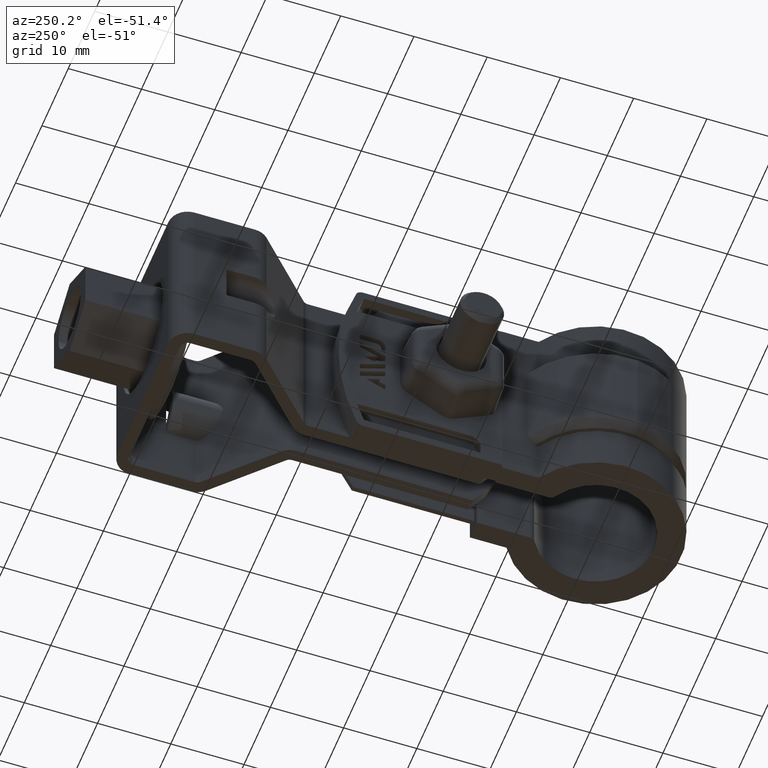
[diagram: clean part render]
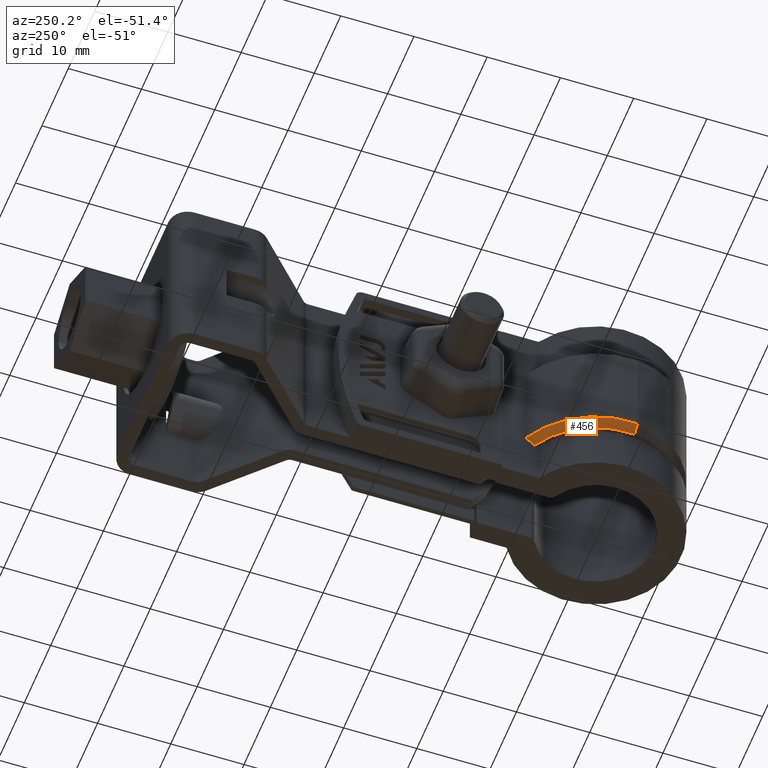
[diagram: same view with one face highlighted and labeled with its STEP entity id]
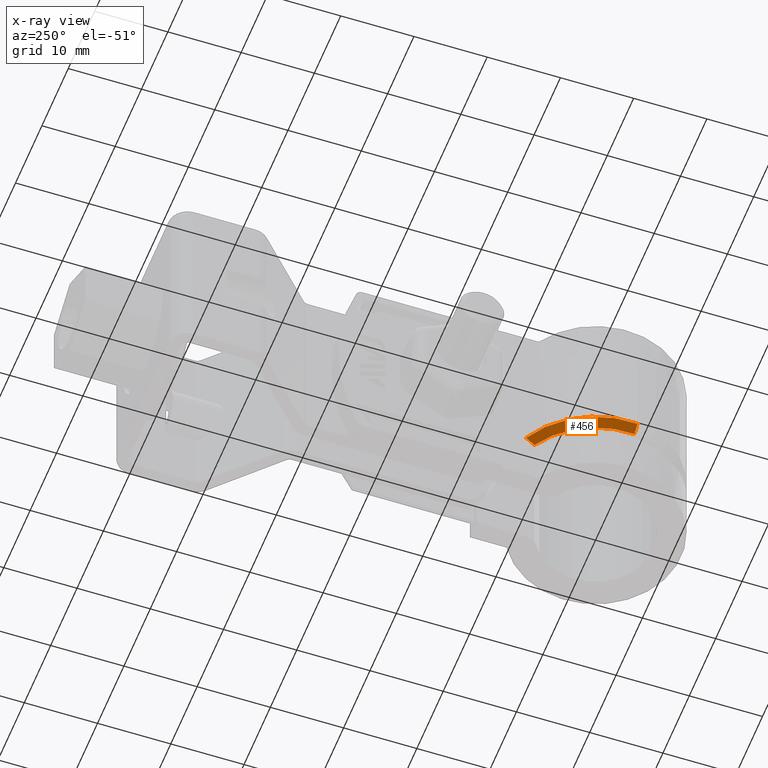
[diagram: x-ray of the same camera — body ghosted, the highlighted face saturated]
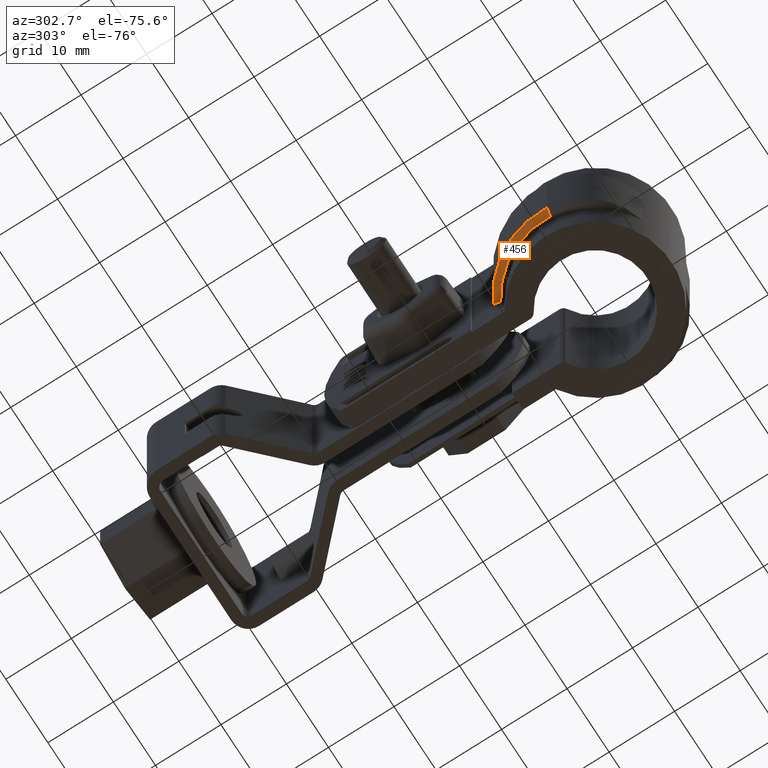
[diagram: same view with one face highlighted and labeled with its STEP entity id]
A machine part, auxiliary view. The second image highlights one B-rep face of the part: STEP entity #456.
The next image is the same camera in x-ray: the body ghosted, the highlighted face saturated — about 0% of this face is hidden behind the body in this view.
A second angle (auxiliary view) of the same face is appended — the face is thin or edge-on in the first view.
In plain terms, the highlighted conical surface has half-angle 45 deg.
Its self-contained STEP definition (entity closure, byte-faithful):
#456 = ADVANCED_FACE( '', ( #886 ), #887, .T. );
#886 = FACE_OUTER_BOUND( '', #2167, .T. );
#887 = CONICAL_SURFACE( '', #2168, 13.1850000000000, 0.785398163397447 );
#2167 = EDGE_LOOP( '', ( #4396, #4397, #4398, #4399 ) );
#2168 = AXIS2_PLACEMENT_3D( '', #4400, #4401, #4402 );
#4396 = ORIENTED_EDGE( '', *, *, #6675, .F. );
#4397 = ORIENTED_EDGE( '', *, *, #6851, .F. );
#4398 = ORIENTED_EDGE( '', *, *, #6848, .F. );
#4399 = ORIENTED_EDGE( '', *, *, #6852, .F. );
#4400 = CARTESIAN_POINT( '', ( -8.67361737988404E-016, 1.73472347597681E-015, -19.0000000000000 ) );
#4401 = DIRECTION( '', ( 0.000000000000000, 0.000000000000000, 1.00000000000000 ) );
#4402 = DIRECTION( '', ( 1.00000000000000, 0.000000000000000, 0.000000000000000 ) );
#6675 = EDGE_CURVE( '', #7706, #7708, #7709, .T. );
#6848 = EDGE_CURVE( '', #8000, #8001, #8002, .T. );
#6851 = EDGE_CURVE( '', #8001, #7706, #8005, .F. );
#6852 = EDGE_CURVE( '', #7708, #8000, #8006, .T. );
#7706 = VERTEX_POINT( '', #9958 );
#7708 = VERTEX_POINT( '', #9961 );
#7709 = B_SPLINE_CURVE_WITH_KNOTS( '', 3, ( #9962, #9963, #9964, #9965 ), .UNSPECIFIED., .F., .F., ( 4, 4 ), ( 0.000000000000000, 0.00151710371603436 ), .UNSPECIFIED. );
#8000 = VERTEX_POINT( '', #10968 );
#8001 = VERTEX_POINT( '', #10969 );
#8002 = LINE( '', #10970, #10971 );
#8005 = CIRCLE( '', #10974, 12.1850000000000 );
#8006 = CIRCLE( '', #10975, 13.1850000000000 );
#9958 = CARTESIAN_POINT( '', ( -6.10000000000000, 10.5481858629814, -20.0000000000000 ) );
#9961 = CARTESIAN_POINT( '', ( -6.10000000000000, 11.6890643338122, -19.0000000000000 ) );
#9962 = CARTESIAN_POINT( '', ( -6.10000000000000, 10.5481858629814, -20.0000000000000 ) );
#9963 = CARTESIAN_POINT( '', ( -6.10000000000000, 10.9305273533123, -19.6690185389299 ) );
#9964 = CARTESIAN_POINT( '', ( -6.10000000000000, 11.3106579793807, -19.3354733576999 ) );
#9965 = CARTESIAN_POINT( '', ( -6.10000000000000, 11.6890643338122, -19.0000000000000 ) );
#10968 = CARTESIAN_POINT( '', ( -13.1454778625978, -1.02011605415861, -19.0000000000000 ) );
#10969 = CARTESIAN_POINT( '', ( -12.1484753701747, -0.942746615087043, -20.0000000000000 ) );
#10970 = CARTESIAN_POINT( '', ( -13.1454778625978, -1.02011605415861, -19.0000000000000 ) );
#10971 = VECTOR( '', #12886, 1000.00000000000 );
#10974 = AXIS2_PLACEMENT_3D( '', #12893, #12894, #12895 );
#10975 = AXIS2_PLACEMENT_3D( '', #12896, #12897, #12898 );
#12886 = DIRECTION( '', ( 0.704987223252218, 0.0547084550241043, -0.707106781186549 ) );
#12893 = CARTESIAN_POINT( '', ( -8.67361737988404E-016, 1.73472347597681E-015, -20.0000000000000 ) );
#12894 = DIRECTION( '', ( 0.000000000000000, 0.000000000000000, 1.00000000000000 ) );
#12895 = DIRECTION( '', ( 1.00000000000000, 0.000000000000000, 0.000000000000000 ) );
#12896 = CARTESIAN_POINT( '', ( -8.67361737988404E-016, 1.73472347597681E-015, -19.0000000000000 ) );
#12897 = DIRECTION( '', ( 0.000000000000000, 0.000000000000000, 1.00000000000000 ) );
#12898 = DIRECTION( '', ( 1.00000000000000, 0.000000000000000, 0.000000000000000 ) );